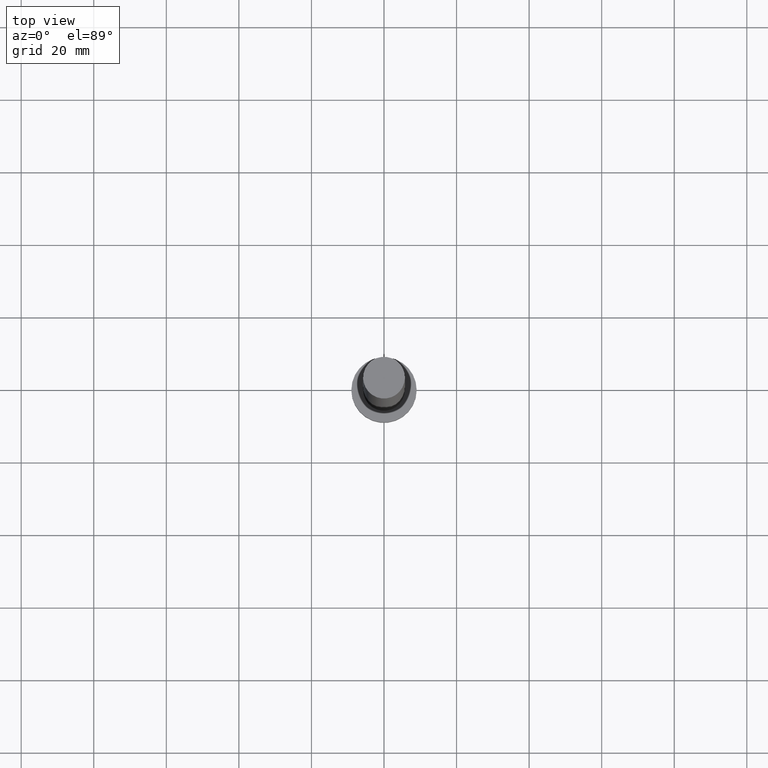
[diagram: clean part render]
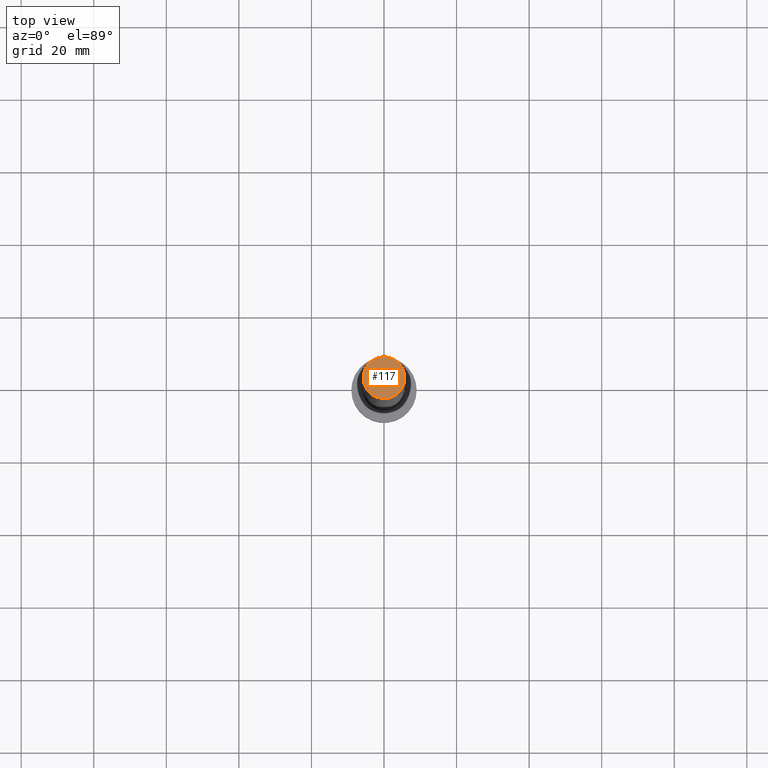
[diagram: same view with one face highlighted and labeled with its STEP entity id]
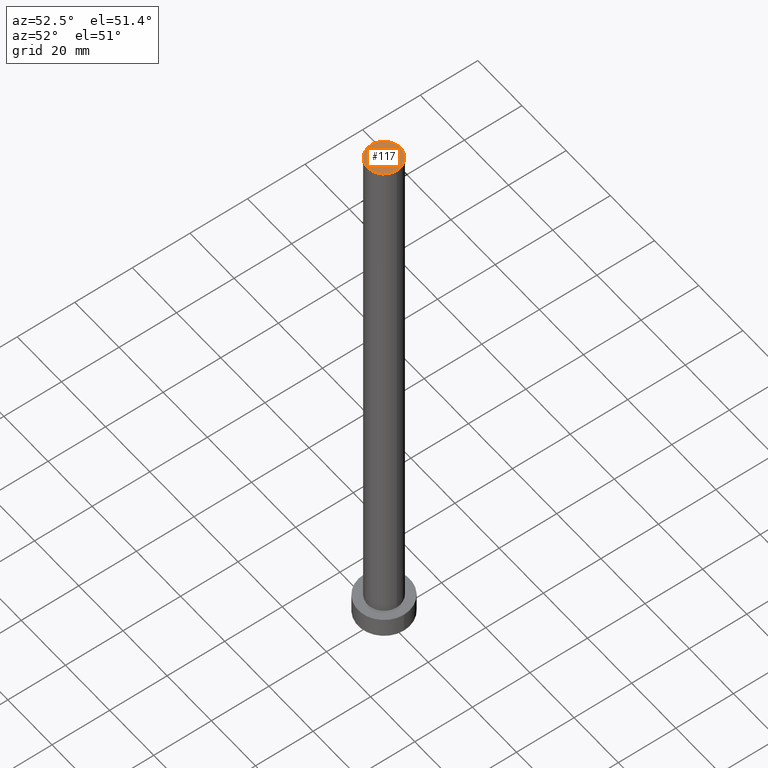
[diagram: same view with one face highlighted and labeled with its STEP entity id]
A machine part, top view. The second image highlights one B-rep face of the part: STEP entity #117.
A second angle (auxiliary view) of the same face is appended — the face is thin or edge-on in the first view.
In plain terms, the highlighted planar face has unit normal (0, 0, 1).
Its self-contained STEP definition (entity closure, byte-faithful):
#2 = DIRECTION ( 'NONE',  ( 0.000000000000000000, 0.000000000000000000, 1.000000000000000000 ) ) ;
#11 = CIRCLE ( 'NONE', #82, 5.750000000000000000 ) ;
#14 = AXIS2_PLACEMENT_3D ( 'NONE', #150, #125, #169 ) ;
#29 = VERTEX_POINT ( 'NONE', #173 ) ;
#35 = ORIENTED_EDGE ( 'NONE', *, *, #152, .T. ) ;
#47 = ORIENTED_EDGE ( 'NONE', *, *, #217, .T. ) ;
#48 = DIRECTION ( 'NONE',  ( 0.000000000000000000, 0.000000000000000000, 1.000000000000000000 ) ) ;
#58 = PLANE ( 'NONE',  #66 ) ;
#66 = AXIS2_PLACEMENT_3D ( 'NONE', #91, #2, #137 ) ;
#79 = FACE_OUTER_BOUND ( 'NONE', #240, .T. ) ;
#82 = AXIS2_PLACEMENT_3D ( 'NONE', #192, #48, #89 ) ;
#89 = DIRECTION ( 'NONE',  ( 1.000000000000000000, 0.000000000000000000, 0.000000000000000000 ) ) ;
#91 = CARTESIAN_POINT ( 'NONE',  ( 0.000000000000000000, 0.000000000000000000, 200.0000000000000000 ) ) ;
#98 = VERTEX_POINT ( 'NONE', #182 ) ;
#117 = ADVANCED_FACE ( 'NONE', ( #79 ), #58, .T. ) ;
#125 = DIRECTION ( 'NONE',  ( 0.000000000000000000, 0.000000000000000000, 1.000000000000000000 ) ) ;
#137 = DIRECTION ( 'NONE',  ( 1.000000000000000000, 0.000000000000000000, -0.000000000000000000 ) ) ;
#150 = CARTESIAN_POINT ( 'NONE',  ( 0.000000000000000000, 0.000000000000000000, 200.0000000000000000 ) ) ;
#152 = EDGE_CURVE ( 'NONE', #98, #29, #219, .T. ) ;
#169 = DIRECTION ( 'NONE',  ( 1.000000000000000000, 0.000000000000000000, 0.000000000000000000 ) ) ;
#173 = CARTESIAN_POINT ( 'NONE',  ( 5.750000000000000000, 7.041719095097280880E-16, 200.0000000000000000 ) ) ;
#182 = CARTESIAN_POINT ( 'NONE',  ( -5.750000000000000000, 0.000000000000000000, 200.0000000000000000 ) ) ;
#192 = CARTESIAN_POINT ( 'NONE',  ( 0.000000000000000000, 0.000000000000000000, 200.0000000000000000 ) ) ;
#217 = EDGE_CURVE ( 'NONE', #29, #98, #11, .T. ) ;
#219 = CIRCLE ( 'NONE', #14, 5.750000000000000000 ) ;
#240 = EDGE_LOOP ( 'NONE', ( #35, #47 ) ) ;